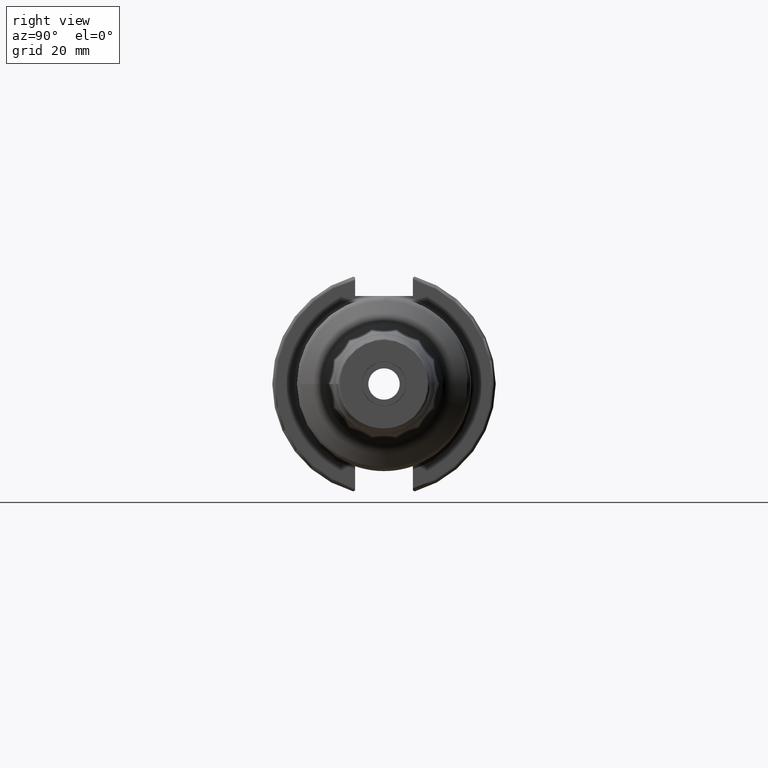
[diagram: clean part render]
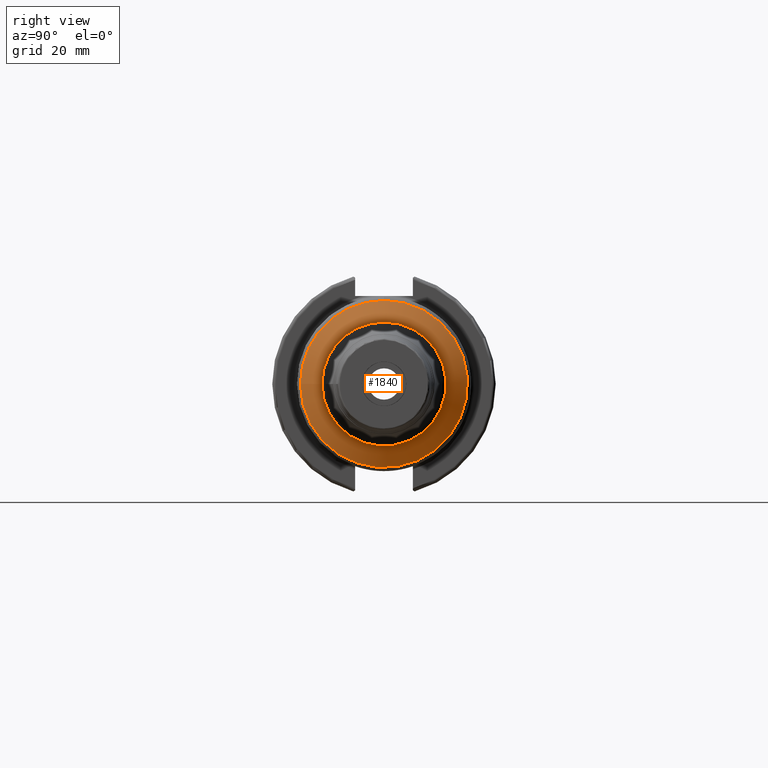
[diagram: same view with one face highlighted and labeled with its STEP entity id]
A machine part, right view. The second image highlights one B-rep face of the part: STEP entity #1840.
In plain terms, the highlighted conical surface has half-angle 60 deg.
Its self-contained STEP definition (entity closure, byte-faithful):
#180=LINE('',#2990,#273);
#273=VECTOR('',#2374,20.7092722749064);
#362=CONICAL_SURFACE('',#2026,20.7092722749064,1.0471975511966);
#399=FACE_OUTER_BOUND('',#506,.T.);
#506=EDGE_LOOP('',(#1349,#1350,#1351,#1352,#1353,#1354));
#657=CIRCLE('',#2023,17.6089714078458);
#659=CIRCLE('',#2025,17.6089714078458);
#660=CIRCLE('',#2027,23.75);
#661=CIRCLE('',#2028,23.75);
#780=VERTEX_POINT('',#2983);
#781=VERTEX_POINT('',#2984);
#782=VERTEX_POINT('',#2989);
#783=VERTEX_POINT('',#2991);
#994=EDGE_CURVE('',#780,#781,#657,.T.);
#996=EDGE_CURVE('',#781,#780,#659,.T.);
#997=EDGE_CURVE('',#780,#782,#180,.T.);
#998=EDGE_CURVE('',#783,#782,#660,.T.);
#999=EDGE_CURVE('',#782,#783,#661,.T.);
#1349=ORIENTED_EDGE('',*,*,#994,.F.);
#1350=ORIENTED_EDGE('',*,*,#997,.T.);
#1351=ORIENTED_EDGE('',*,*,#998,.F.);
#1352=ORIENTED_EDGE('',*,*,#999,.F.);
#1353=ORIENTED_EDGE('',*,*,#997,.F.);
#1354=ORIENTED_EDGE('',*,*,#996,.F.);
#1840=ADVANCED_FACE('',(#399),#362,.T.);
#2023=AXIS2_PLACEMENT_3D('',#2985,#2366,#2367);
#2025=AXIS2_PLACEMENT_3D('',#2987,#2370,#2371);
#2026=AXIS2_PLACEMENT_3D('',#2988,#2372,#2373);
#2027=AXIS2_PLACEMENT_3D('',#2992,#2375,#2376);
#2028=AXIS2_PLACEMENT_3D('',#2993,#2377,#2378);
#2366=DIRECTION('center_axis',(1.,0.,0.));
#2367=DIRECTION('ref_axis',(0.,-1.,3.06161699786838E-17));
#2370=DIRECTION('center_axis',(1.,0.,0.));
#2371=DIRECTION('ref_axis',(0.,-1.,3.06161699786838E-17));
#2372=DIRECTION('center_axis',(-1.,0.,0.));
#2373=DIRECTION('ref_axis',(0.,1.,0.));
#2374=DIRECTION('',(-0.5,-0.866025403784438,-1.06057523872491E-16));
#2375=DIRECTION('center_axis',(-1.,0.,0.));
#2376=DIRECTION('ref_axis',(0.,-1.,3.06161699786838E-17));
#2377=DIRECTION('center_axis',(-1.,0.,0.));
#2378=DIRECTION('ref_axis',(0.,-1.,3.06161699786838E-17));
#2983=CARTESIAN_POINT('',(49.4570443003616,-17.6089714078458,-2.15647704708956E-15));
#2984=CARTESIAN_POINT('',(49.4570443003616,-2.15647704708956E-15,17.6089714078458));
#2985=CARTESIAN_POINT('Origin',(49.4570443003616,0.,-2.69559630886195E-15));
#2987=CARTESIAN_POINT('Origin',(49.4570443003616,0.,-2.69559630886195E-15));
#2988=CARTESIAN_POINT('Origin',(47.6670847601952,0.,0.));
#2989=CARTESIAN_POINT('',(45.9115197895801,-23.75,-2.90853614797496E-15));
#2990=CARTESIAN_POINT('',(47.6670847601952,-20.7092722749064,-2.53615440041352E-15));
#2991=CARTESIAN_POINT('',(45.9115197895801,-2.90853614797496E-15,23.75));
#2992=CARTESIAN_POINT('Origin',(45.9115197895801,0.,-3.6356701849687E-15));
#2993=CARTESIAN_POINT('Origin',(45.9115197895801,0.,-3.6356701849687E-15));